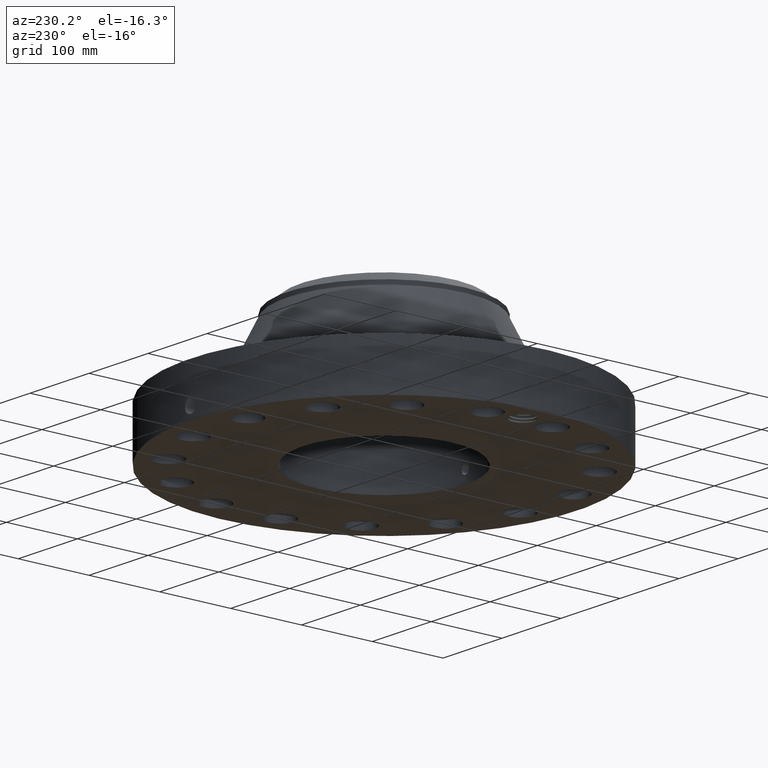
[diagram: clean part render]
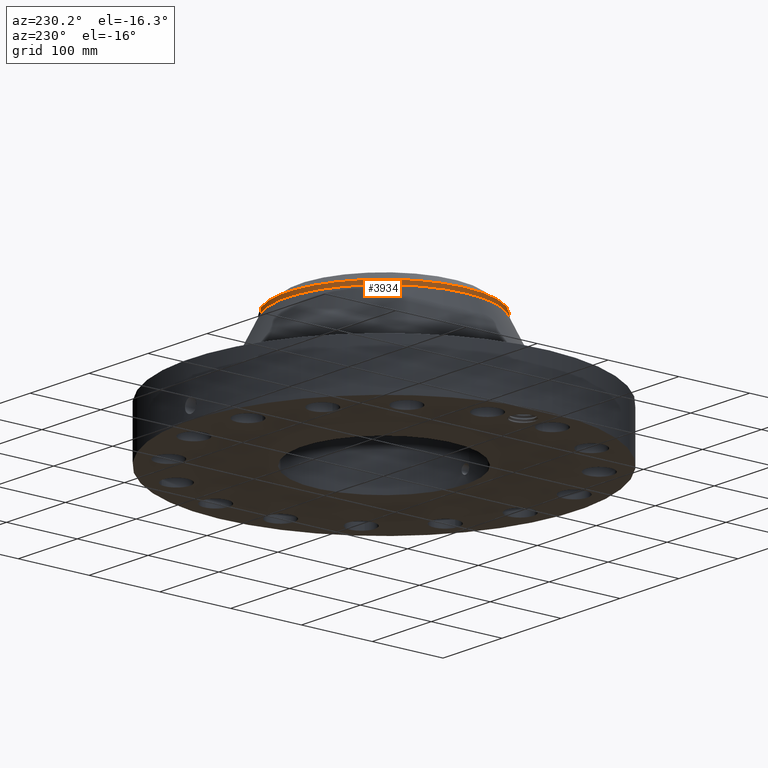
[diagram: same view with one face highlighted and labeled with its STEP entity id]
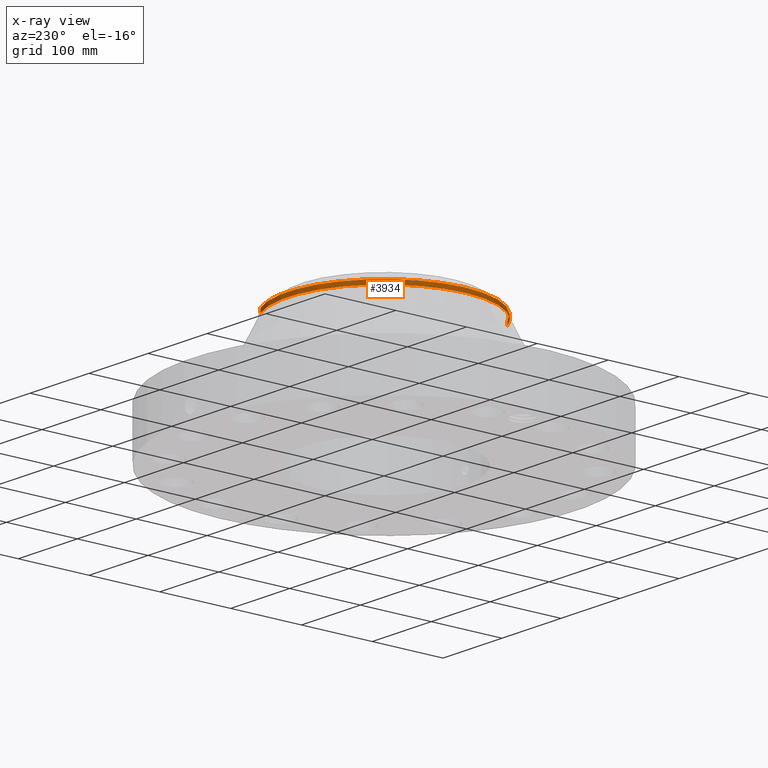
[diagram: x-ray of the same camera — body ghosted, the highlighted face saturated]
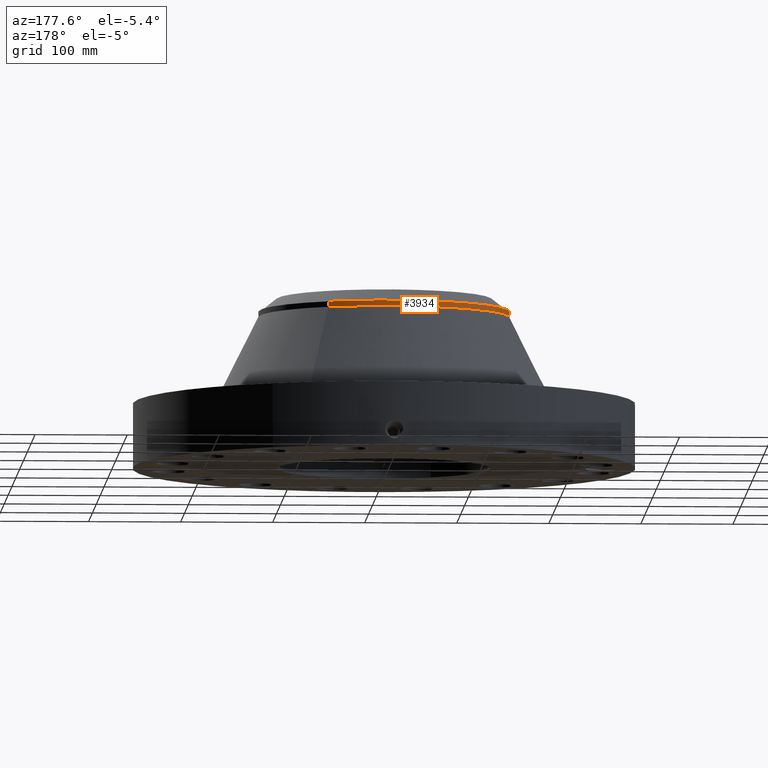
[diagram: same view with one face highlighted and labeled with its STEP entity id]
A machine part, auxiliary view. The second image highlights one B-rep face of the part: STEP entity #3934.
The next image is the same camera in x-ray: the body ghosted, the highlighted face saturated — about 0% of this face is hidden behind the body in this view.
A second angle (auxiliary view) of the same face is appended — the face is thin or edge-on in the first view.
In plain terms, the highlighted cylindrical surface (partial cylindrical patch) has radius 136.525 mm, axis along (0, 0, -1).
Its self-contained STEP definition (entity closure, byte-faithful):
#3099=AXIS2_PLACEMENT_3D('Circle Axis2P3D',#3097,#3098,$) ;
#3879=AXIS2_PLACEMENT_3D('Cylinder Axis2P3D',#3876,#3877,#3878) ;
#3917=AXIS2_PLACEMENT_3D('Circle Axis2P3D',#3915,#3916,$) ;
#3924=AXIS2_PLACEMENT_3D('Circle Axis2P3D',#3922,#3923,$) ;
#3075=CARTESIAN_POINT('Vertex',(2.57691227001,4.71700627018,6.73329238413)) ;
#3082=CARTESIAN_POINT('Vertex',(-2.57691227001,-4.71700627018,6.73329238413)) ;
#3097=CARTESIAN_POINT('Axis2P3D Location',(0.,0.,6.73329238413)) ;
#3876=CARTESIAN_POINT('Axis2P3D Location',(0.,0.,3.87500000002)) ;
#3881=CARTESIAN_POINT('Line Origine',(-2.57691227001,-4.71700627018,6.85140262035)) ;
#3885=CARTESIAN_POINT('Vertex',(-2.57691227001,-4.71700627018,6.96951285657)) ;
#3888=CARTESIAN_POINT('Line Origine',(2.57691227001,4.71700627018,6.85140262035)) ;
#3892=CARTESIAN_POINT('Vertex',(2.57691227001,4.71700627018,6.96951285657)) ;
#3915=CARTESIAN_POINT('Axis2P3D Location',(0.,0.,6.96951285657)) ;
#3919=CARTESIAN_POINT('Vertex',(-2.57691227001,4.71700627018,6.96951285657)) ;
#3922=CARTESIAN_POINT('Axis2P3D Location',(0.,0.,6.96951285657)) ;
#3098=DIRECTION('Axis2P3D Direction',(0.,0.,-0.0393700787402)) ;
#3877=DIRECTION('Axis2P3D Direction',(0.,0.,-0.0393700787402)) ;
#3878=DIRECTION('Axis2P3D XDirection',(-0.0188750212049,-0.0345504945626,0.)) ;
#3882=DIRECTION('Vector Direction',(0.,0.,-0.0393700787402)) ;
#3889=DIRECTION('Vector Direction',(0.,0.,-0.0393700787402)) ;
#3916=DIRECTION('Axis2P3D Direction',(0.,0.,-0.0393700787402)) ;
#3923=DIRECTION('Axis2P3D Direction',(0.,0.,-0.0393700787402)) ;
#3883=VECTOR('Line Direction',#3882,0.0393700787402) ;
#3890=VECTOR('Line Direction',#3889,0.0393700787402) ;
#3928=ORIENTED_EDGE('',*,*,#3894,.F.) ;
#3929=ORIENTED_EDGE('',*,*,#3101,.F.) ;
#3930=ORIENTED_EDGE('',*,*,#3887,.T.) ;
#3931=ORIENTED_EDGE('',*,*,#3921,.F.) ;
#3932=ORIENTED_EDGE('',*,*,#3926,.T.) ;
#3934=ADVANCED_FACE('PartBody',(#3933),#3880,.T.) ;
#3100=CIRCLE('generated circle',#3099,5.37500000002) ;
#3918=CIRCLE('generated circle',#3917,5.37500000002) ;
#3925=CIRCLE('generated circle',#3924,5.37500000002) ;
#3880=CYLINDRICAL_SURFACE('generated cylinder',#3879,5.37500000002) ;
#3101=EDGE_CURVE('',#3083,#3076,#3100,.T.) ;
#3887=EDGE_CURVE('',#3083,#3886,#3884,.F.) ;
#3894=EDGE_CURVE('',#3076,#3893,#3891,.F.) ;
#3921=EDGE_CURVE('',#3920,#3886,#3918,.F.) ;
#3926=EDGE_CURVE('',#3920,#3893,#3925,.T.) ;
#3927=EDGE_LOOP('',(#3928,#3929,#3930,#3931,#3932)) ;
#3933=FACE_OUTER_BOUND('',#3927,.T.) ;
#3884=LINE('Line',#3881,#3883) ;
#3891=LINE('Line',#3888,#3890) ;
#3076=VERTEX_POINT('',#3075) ;
#3083=VERTEX_POINT('',#3082) ;
#3886=VERTEX_POINT('',#3885) ;
#3893=VERTEX_POINT('',#3892) ;
#3920=VERTEX_POINT('',#3919) ;